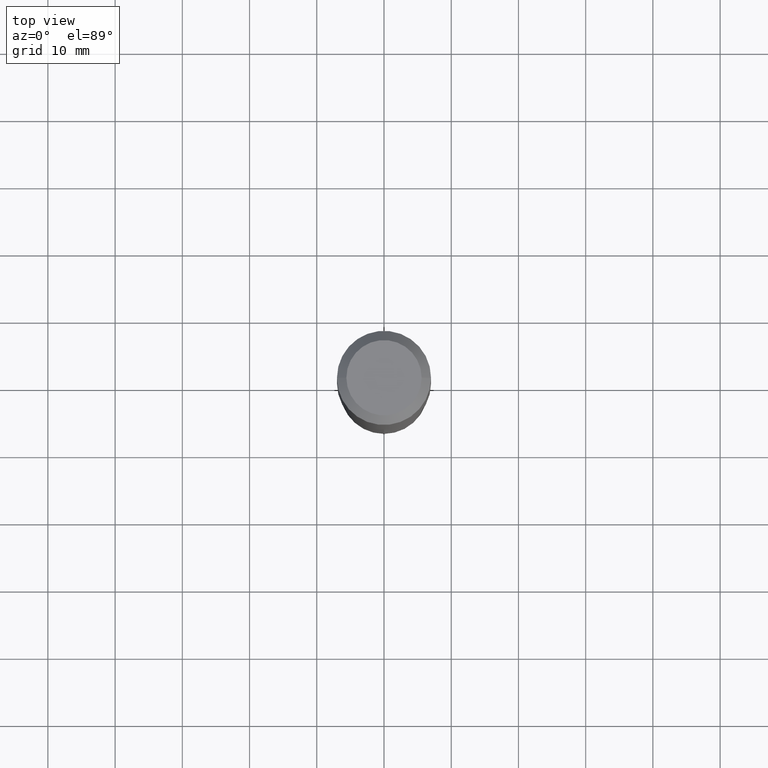
[diagram: clean part render]
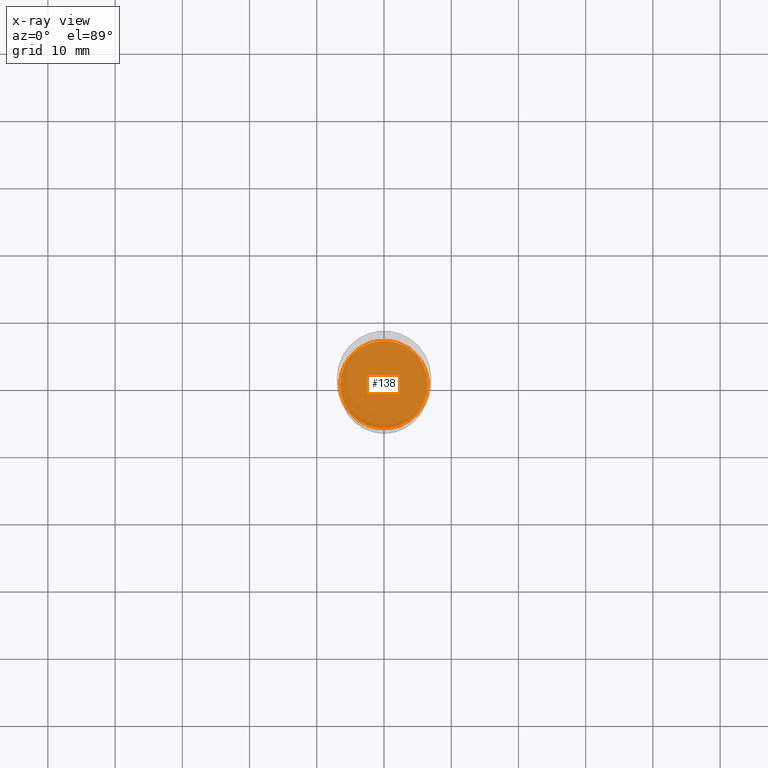
[diagram: x-ray — body ghosted, one internal face saturated and labeled with its STEP entity id]
A machine part, top view, then the same camera in x-ray: the body is ghosted and one INTERNAL B-rep face — a face not visible from any outside direction — is saturated and labeled: STEP entity #138.
In plain terms, the highlighted planar face has unit normal (-0, 0, 1).
Its self-contained STEP definition (entity closure, byte-faithful):
#4 = FACE_OUTER_BOUND ( 'NONE', #333, .T. ) ;
#20 = DIRECTION ( 'NONE',  ( -2.438088387897960049E-29, 3.491481338843145188E-15, 1.000000000000000000 ) ) ;
#25 = VERTEX_POINT ( 'NONE', #186 ) ;
#45 = ORIENTED_EDGE ( 'NONE', *, *, #46, .F. ) ;
#46 = EDGE_CURVE ( 'NONE', #301, #25, #356, .T. ) ;
#56 = CARTESIAN_POINT ( 'NONE',  ( -0.2572999999999999732, -6.429969161418035843E-15, -2.366000000000000547 ) ) ;
#75 = DIRECTION ( 'NONE',  ( 1.000000000000000000, -6.982962677686266711E-15, 0.000000000000000000 ) ) ;
#93 = CARTESIAN_POINT ( 'NONE',  ( 5.785979195434034596E-29, -8.260844847702884631E-15, -2.366000000000000547 ) ) ;
#138 = ADVANCED_FACE ( 'NONE', ( #4 ), #345, .F. ) ;
#170 = AXIS2_PLACEMENT_3D ( 'NONE', #429, #20, #388 ) ;
#186 = CARTESIAN_POINT ( 'NONE',  ( 0.2572999999999999732, -1.005756114467156079E-14, -2.366000000000000547 ) ) ;
#235 = EDGE_CURVE ( 'NONE', #25, #301, #348, .T. ) ;
#236 = DIRECTION ( 'NONE',  ( 1.000000000000000000, -6.982962677686266711E-15, 0.000000000000000000 ) ) ;
#301 = VERTEX_POINT ( 'NONE', #56 ) ;
#314 = CARTESIAN_POINT ( 'NONE',  ( 5.785979195434034596E-29, -8.260844847702884631E-15, -2.366000000000000547 ) ) ;
#318 = DIRECTION ( 'NONE',  ( -2.445468806185136597E-29, 3.491481338843145583E-15, 1.000000000000000000 ) ) ;
#328 = ORIENTED_EDGE ( 'NONE', *, *, #235, .F. ) ;
#333 = EDGE_LOOP ( 'NONE', ( #328, #45 ) ) ;
#345 = PLANE ( 'NONE',  #170 ) ;
#348 = CIRCLE ( 'NONE', #412, 0.2572999999999999732 ) ;
#356 = CIRCLE ( 'NONE', #483, 0.2572999999999999732 ) ;
#388 = DIRECTION ( 'NONE',  ( 1.000000000000000000, -6.982962677686265922E-15, 4.876176775795935793E-29 ) ) ;
#412 = AXIS2_PLACEMENT_3D ( 'NONE', #93, #318, #236 ) ;
#429 = CARTESIAN_POINT ( 'NONE',  ( 4.031811109684418189E-29, -1.077291338754340070E-14, -2.366000000000000547 ) ) ;
#461 = DIRECTION ( 'NONE',  ( -2.445468806185136597E-29, 3.491481338843145583E-15, 1.000000000000000000 ) ) ;
#483 = AXIS2_PLACEMENT_3D ( 'NONE', #314, #461, #75 ) ;